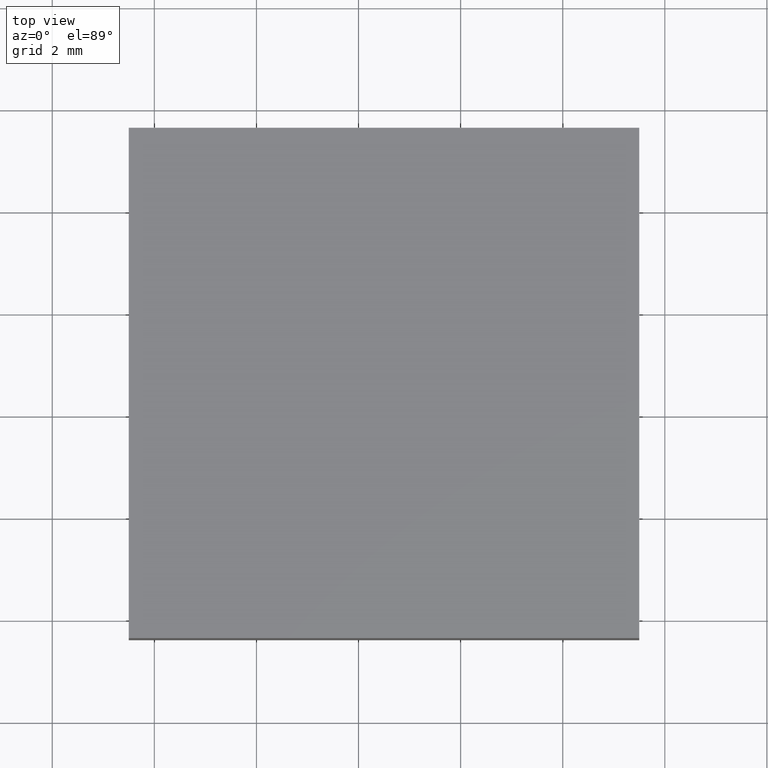
[diagram: clean part render]
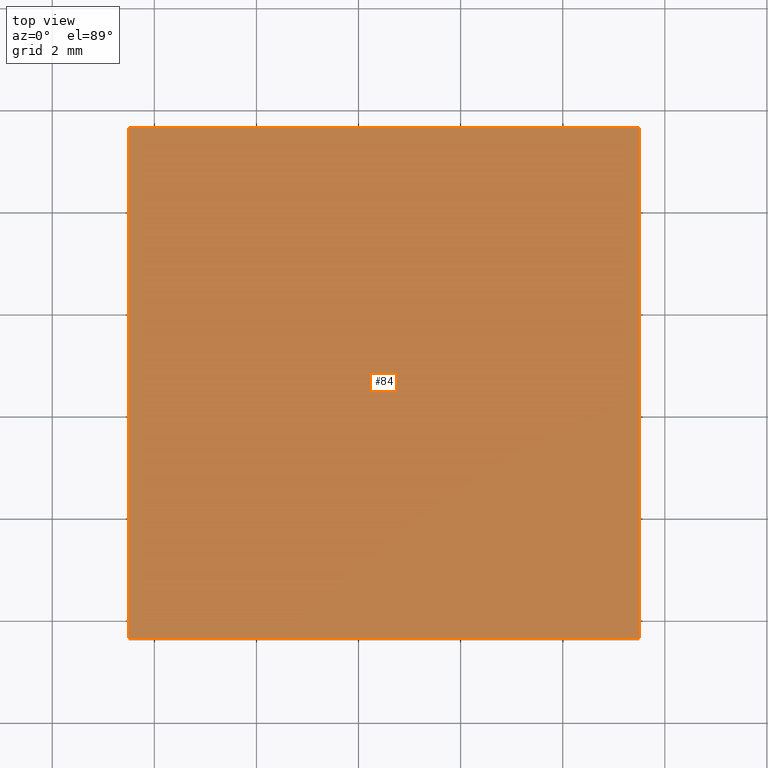
[diagram: same view with one face highlighted and labeled with its STEP entity id]
A machine part, top view. The second image highlights one B-rep face of the part: STEP entity #84.
In plain terms, the highlighted planar face has unit normal (-0, 0, 1).
Its self-contained STEP definition (entity closure, byte-faithful):
#5 = PLANE ( 'NONE',  #143 ) ;
#21 = DIRECTION ( 'NONE',  ( 0.0000000000000000000, -1.000000000000000000, 0.0000000000000000000 ) ) ;
#23 = CARTESIAN_POINT ( 'NONE',  ( 35.49917431035403600, 19.62529673381063900, 2.299999999999999800 ) ) ;
#29 = EDGE_LOOP ( 'NONE', ( #157, #188, #114, #111 ) ) ;
#32 = LINE ( 'NONE', #131, #156 ) ;
#35 = EDGE_CURVE ( 'NONE', #59, #80, #135, .T. ) ;
#41 = DIRECTION ( 'NONE',  ( -1.000000000000000000, -0.0000000000000000000, -0.0000000000000000000 ) ) ;
#53 = CARTESIAN_POINT ( 'NONE',  ( 35.49917431035403600, 29.62529673381063600, 2.299999999999999800 ) ) ;
#57 = CARTESIAN_POINT ( 'NONE',  ( 35.49917431035403600, 29.62529673381063600, 2.299999999999999800 ) ) ;
#59 = VERTEX_POINT ( 'NONE', #23 ) ;
#62 = FACE_OUTER_BOUND ( 'NONE', #29, .T. ) ;
#72 = CARTESIAN_POINT ( 'NONE',  ( 45.49917431035403600, 19.62529673381063900, 2.299999999999999800 ) ) ;
#80 = VERTEX_POINT ( 'NONE', #72 ) ;
#82 = EDGE_CURVE ( 'NONE', #112, #59, #186, .T. ) ;
#84 = ADVANCED_FACE ( 'NONE', ( #62 ), #5, .T. ) ;
#85 = CARTESIAN_POINT ( 'NONE',  ( 35.49917431035403600, 19.62529673381063900, 2.299999999999999800 ) ) ;
#96 = LINE ( 'NONE', #105, #115 ) ;
#97 = VERTEX_POINT ( 'NONE', #101 ) ;
#101 = CARTESIAN_POINT ( 'NONE',  ( 45.49917431035402900, 29.62529673381063600, 2.299999999999999800 ) ) ;
#102 = DIRECTION ( 'NONE',  ( 1.000000000000000000, 0.0000000000000000000, 0.0000000000000000000 ) ) ;
#105 = CARTESIAN_POINT ( 'NONE',  ( 35.49917431035403600, 29.62529673381063600, 2.299999999999999800 ) ) ;
#109 = DIRECTION ( 'NONE',  ( -6.938893903907232300E-016, 1.000000000000000000, -0.0000000000000000000 ) ) ;
#110 = VECTOR ( 'NONE', #102, 1000.000000000000000 ) ;
#111 = ORIENTED_EDGE ( 'NONE', *, *, #193, .T. ) ;
#112 = VERTEX_POINT ( 'NONE', #57 ) ;
#114 = ORIENTED_EDGE ( 'NONE', *, *, #133, .T. ) ;
#115 = VECTOR ( 'NONE', #41, 1000.000000000000000 ) ;
#116 = CARTESIAN_POINT ( 'NONE',  ( 0.0000000000000000000, 0.0000000000000000000, 2.299999999999999800 ) ) ;
#121 = VECTOR ( 'NONE', #21, 1000.000000000000000 ) ;
#131 = CARTESIAN_POINT ( 'NONE',  ( 45.49917431035402900, 29.62529673381063600, 2.299999999999999800 ) ) ;
#133 = EDGE_CURVE ( 'NONE', #80, #97, #32, .T. ) ;
#135 = LINE ( 'NONE', #85, #110 ) ;
#140 = DIRECTION ( 'NONE',  ( -0.0000000000000000000, 0.0000000000000000000, 1.000000000000000000 ) ) ;
#143 = AXIS2_PLACEMENT_3D ( 'NONE', #116, #140, #162 ) ;
#156 = VECTOR ( 'NONE', #109, 1000.000000000000000 ) ;
#157 = ORIENTED_EDGE ( 'NONE', *, *, #82, .T. ) ;
#162 = DIRECTION ( 'NONE',  ( 1.000000000000000000, 0.0000000000000000000, 0.0000000000000000000 ) ) ;
#186 = LINE ( 'NONE', #53, #121 ) ;
#188 = ORIENTED_EDGE ( 'NONE', *, *, #35, .T. ) ;
#193 = EDGE_CURVE ( 'NONE', #97, #112, #96, .T. ) ;